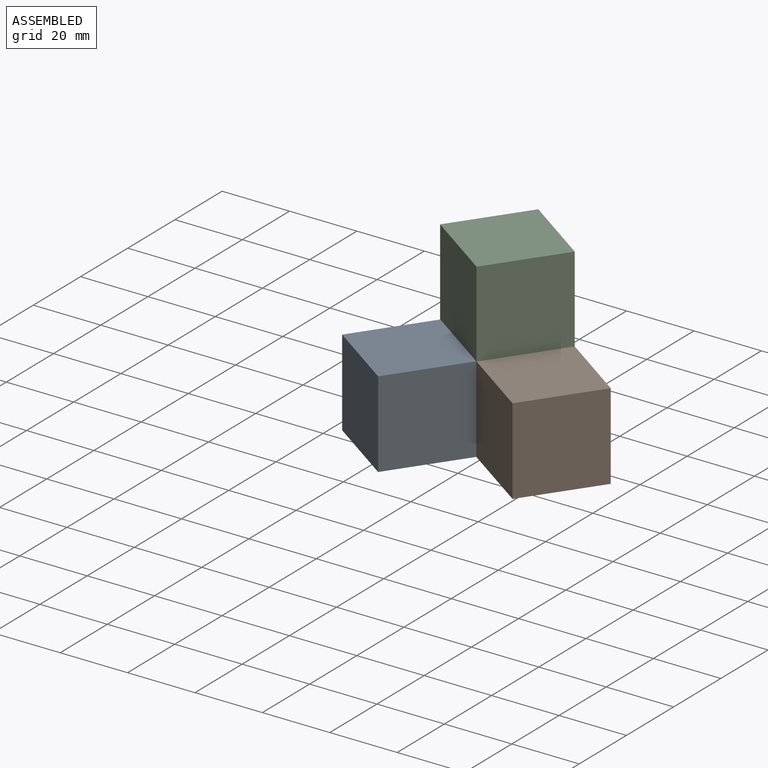
[diagram: assembled view]
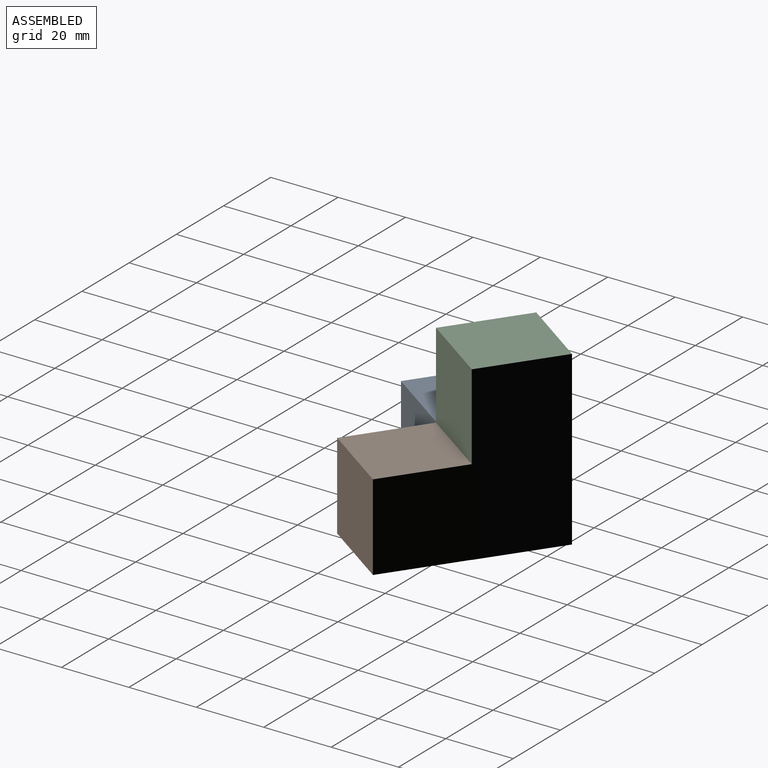
[diagram: assembled view, second angle]
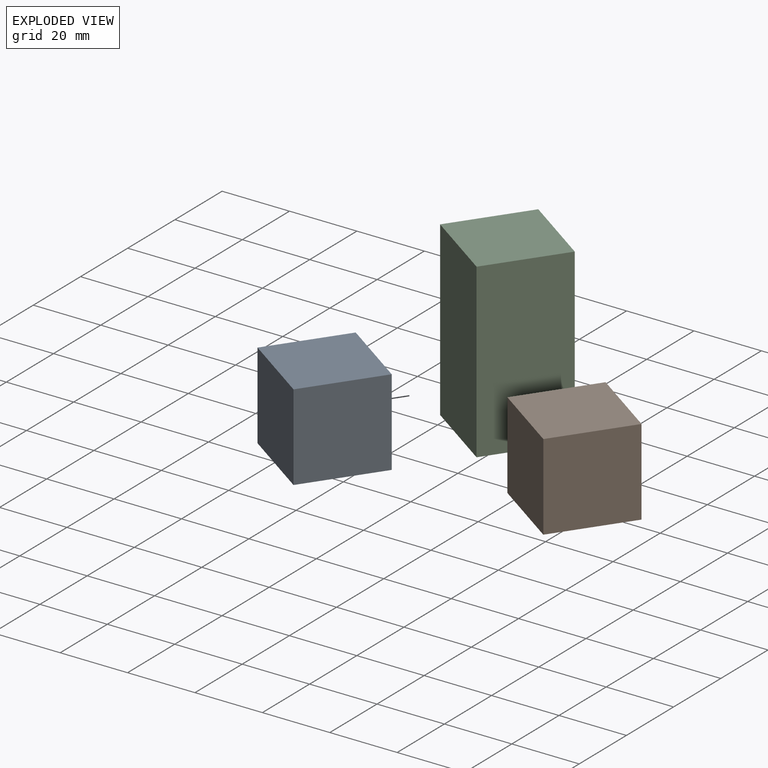
[diagram: exploded view]
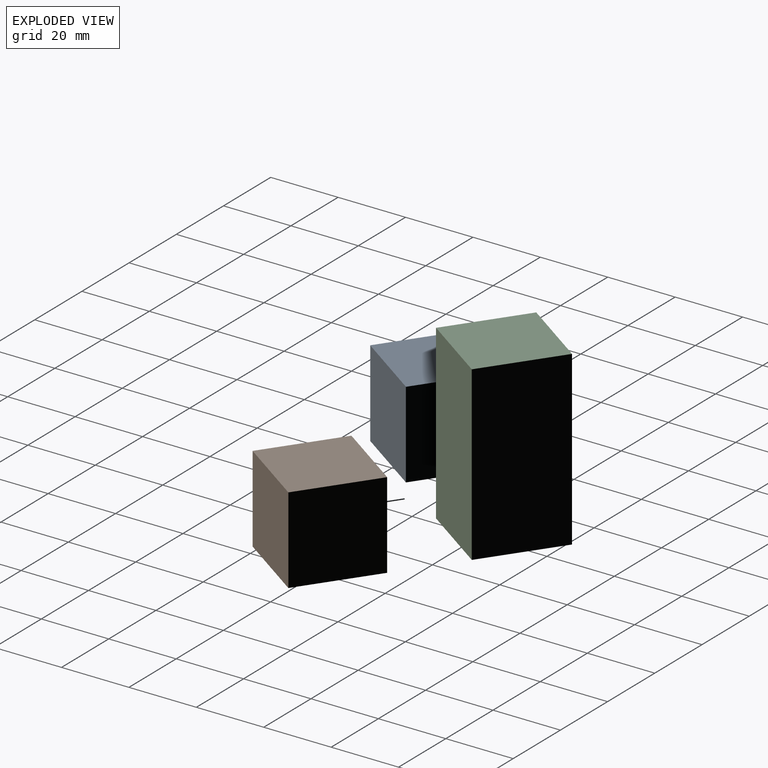
[diagram: exploded view, second angle]
ASSEMBLY  parts=3 mates=2
PART A: 6 faces, bbox 25.6x25.4x25.6 mm
  f0: plane 25.57x25.4mm, normal (0,0,1), area 649.4mm2, adj f1,f3,f4,f5
  f1: plane 25.65x25.4mm, normal (-1,0,0), area 651.4mm2, adj f0,f2,f4,f5
  f2: plane 25.57x25.4mm, normal (0,0,-1), area 649.4mm2, adj f1,f3,f4,f5
  f3: plane 25.65x25.4mm, normal (1,0,0), area 651.4mm2, adj f0,f2,f4,f5
  f4: plane 25.65x25.57mm, normal (0,-1,0), area 655.7mm2, adj f0,f1,f2,f3
  f5: plane 25.65x25.57mm, normal (0,1,0), area 655.7mm2, adj f0,f1,f2,f3
PART B: 6 faces, bbox 25.6x25.4x25.6 mm
  f0: plane 25.57x25.4mm, normal (0,0,1), area 649.4mm2, adj f1,f3,f4,f5
  f1: plane 25.65x25.4mm, normal (-1,0,0), area 651.4mm2, adj f0,f2,f4,f5
  f2: plane 25.57x25.4mm, normal (0,0,-1), area 649.4mm2, adj f1,f3,f4,f5
  f3: plane 25.65x25.4mm, normal (1,0,0), area 651.4mm2, adj f0,f2,f4,f5
  f4: plane 25.65x25.57mm, normal (0,-1,0), area 655.7mm2, adj f0,f1,f2,f3
  f5: plane 25.65x25.57mm, normal (0,1,0), area 655.7mm2, adj f0,f1,f2,f3
PART C: 6 faces, bbox 25.9x25.4x51.1 mm
  f0: plane 25.92x25.4mm, normal (0,0,1), area 658.5mm2, adj f1,f3,f4,f5
  f1: plane 51.11x25.4mm, normal (-1,0,0), area 1298.2mm2, adj f0,f2,f4,f5
  f2: plane 25.92x25.4mm, normal (0,0,-1), area 658.5mm2, adj f1,f3,f4,f5
  f3: plane 51.11x25.4mm, normal (1,0,0), area 1298.2mm2, adj f0,f2,f4,f5
  f4: plane 51.11x25.92mm, normal (0,-1,0), area 1325mm2, adj f0,f1,f2,f3
  f5: plane 51.11x25.92mm, normal (0,1,0), area 1325mm2, adj f0,f1,f2,f3
PLACE A rot(axis=(0,0,-1),35deg) t=(31.2,-116.24,53.58)mm
PLACE B rot(axis=(0,0,-1),35deg) t=(33.41,-86.77,56.71)mm
PLACE C rot(axis=(0,0,-1),35deg) t=(47.37,-96.55,1.51)mm
MATE fastened B.f1 <-> C.f3  axis (-0.82,0.57,0) through (-52.34,-42.23,-11.38)mm
MATE fastened A.f5 <-> C.f4  axis (0.57,0.82,0) through (-70.25,-45.2,-11.38)mm
